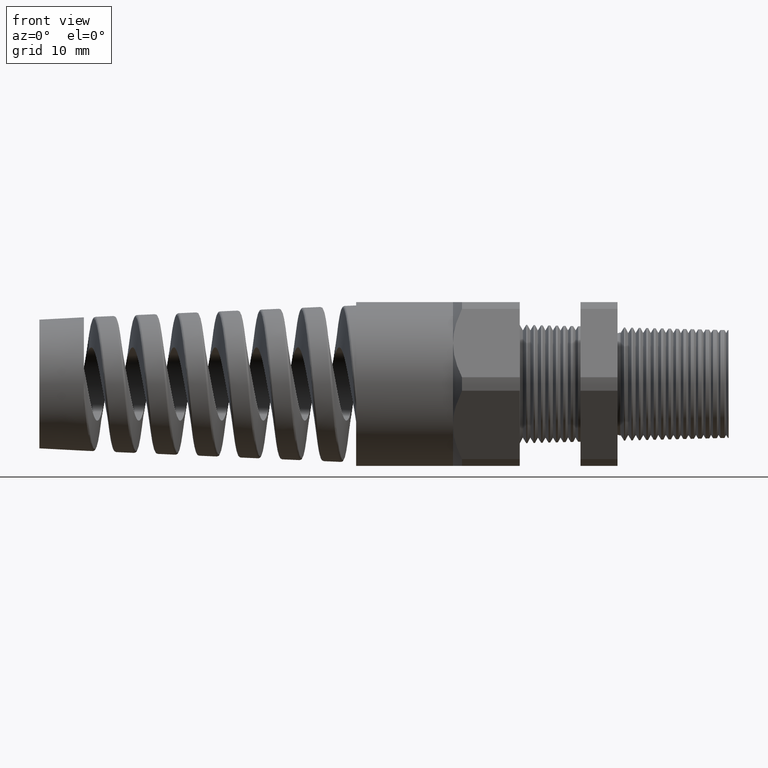
[diagram: clean part render]
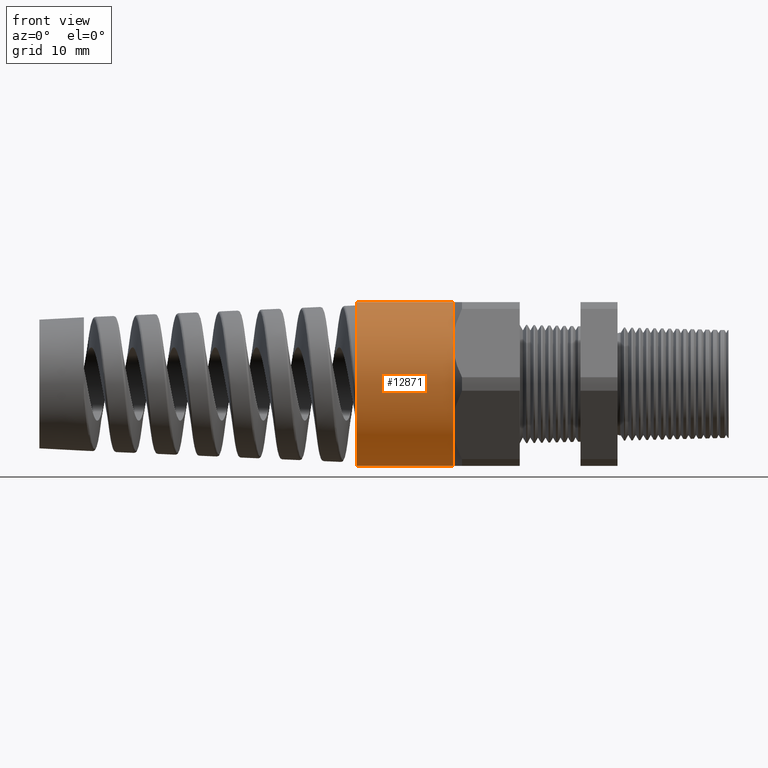
[diagram: same view with one face highlighted and labeled with its STEP entity id]
A machine part, front view. The second image highlights one B-rep face of the part: STEP entity #12871.
In plain terms, the highlighted cylindrical surface (partial cylindrical patch) has radius 11.049 mm, axis along (1, -0, -0).
Its self-contained STEP definition (entity closure, byte-faithful):
#6611 = DIRECTION ( 'NONE',  ( 1.000000000000000000, -0.0000000000000000000, -0.0000000000000000000 ) ) ;
#6616 = CARTESIAN_POINT ( 'NONE',  ( -1.697947509874504300, 0.0000000000000000000, 0.0000000000000000000 ) ) ;
#6617 = DIRECTION ( 'NONE',  ( 0.0000000000000000000, 0.0000000000000000000, -1.000000000000000000 ) ) ;
#6662 = CARTESIAN_POINT ( 'NONE',  ( -1.183700787401574600, 0.0000000000000000000, 0.4350000000000000000 ) ) ;
#6663 = DIRECTION ( 'NONE',  ( 1.000000000000000000, -0.0000000000000000000, -0.0000000000000000000 ) ) ;
#6664 = VECTOR ( 'NONE', #6663, 39.37007874015748100 ) ;
#6665 = CARTESIAN_POINT ( 'NONE',  ( 1.326736918405036800, 5.327213576290986400E-017, 0.4350000000000000000 ) ) ;
#6666 = LINE ( 'NONE', #6665, #6664 ) ;
#6667 = CARTESIAN_POINT ( 'NONE',  ( -1.697947509874504300, 0.0000000000000000000, -0.4350000000000000000 ) ) ;
#6668 = CARTESIAN_POINT ( 'NONE',  ( -1.697947509874504300, 5.327213576290986400E-017, 0.4350000000000000000 ) ) ;
#6735 = CARTESIAN_POINT ( 'NONE',  ( -1.183700787401574600, 0.0000000000000000000, -0.4350000000000000000 ) ) ;
#6792 = DIRECTION ( 'NONE',  ( 1.000000000000000000, -0.0000000000000000000, -0.0000000000000000000 ) ) ;
#6793 = VECTOR ( 'NONE', #6792, 39.37007874015748100 ) ;
#6794 = CARTESIAN_POINT ( 'NONE',  ( 1.326736918405036800, 0.0000000000000000000, -0.4350000000000000000 ) ) ;
#6795 = LINE ( 'NONE', #6794, #6793 ) ;
#6862 = CIRCLE ( 'NONE', #7110, 0.4350000000000000000 ) ;
#7110 = AXIS2_PLACEMENT_3D ( 'NONE', #6616, #7354, #7360 ) ;
#7354 = DIRECTION ( 'NONE',  ( -1.000000000000000000, 0.0000000000000000000, 0.0000000000000000000 ) ) ;
#7360 = DIRECTION ( 'NONE',  ( 0.0000000000000000000, 0.0000000000000000000, 1.000000000000000000 ) ) ;
#7687 = CARTESIAN_POINT ( 'NONE',  ( -1.183700787401574600, -0.3767210506462310100, 0.2174999999999999400 ) ) ;
#7741 = CARTESIAN_POINT ( 'NONE',  ( -1.183700787401574600, -0.3767210506462307900, -0.2174999999999999700 ) ) ;
#7801 = DIRECTION ( 'NONE',  ( 0.0000000000000000000, 0.0000000000000000000, -1.000000000000000000 ) ) ;
#7802 = DIRECTION ( 'NONE',  ( 1.000000000000000000, -0.0000000000000000000, -0.0000000000000000000 ) ) ;
#7803 = CARTESIAN_POINT ( 'NONE',  ( -1.183700787401574600, 0.0000000000000000000, 0.0000000000000000000 ) ) ;
#7804 = AXIS2_PLACEMENT_3D ( 'NONE', #7803, #7802, #7801 ) ;
#7805 = CIRCLE ( 'NONE', #7804, 0.4350000000000000000 ) ;
#7833 = CARTESIAN_POINT ( 'NONE',  ( 1.326736918405036800, 0.0000000000000000000, 0.0000000000000000000 ) ) ;
#7834 = AXIS2_PLACEMENT_3D ( 'NONE', #7833, #6611, #6617 ) ;
#7837 = CYLINDRICAL_SURFACE ( 'NONE', #7834, 0.4350000000000000000 ) ;
#7838 = FACE_OUTER_BOUND ( 'NONE', #12872, .T. ) ;
#7886 = DIRECTION ( 'NONE',  ( 0.0000000000000000000, 0.0000000000000000000, -1.000000000000000000 ) ) ;
#7887 = DIRECTION ( 'NONE',  ( 1.000000000000000000, -0.0000000000000000000, -0.0000000000000000000 ) ) ;
#7888 = CARTESIAN_POINT ( 'NONE',  ( -1.183700787401574600, 0.0000000000000000000, 0.0000000000000000000 ) ) ;
#7889 = AXIS2_PLACEMENT_3D ( 'NONE', #7888, #7887, #7886 ) ;
#7890 = CIRCLE ( 'NONE', #7889, 0.4350000000000000000 ) ;
#7891 = DIRECTION ( 'NONE',  ( 0.0000000000000000000, 0.0000000000000000000, -1.000000000000000000 ) ) ;
#7892 = DIRECTION ( 'NONE',  ( 1.000000000000000000, -0.0000000000000000000, -0.0000000000000000000 ) ) ;
#7893 = CARTESIAN_POINT ( 'NONE',  ( -1.183700787401574600, 0.0000000000000000000, 0.0000000000000000000 ) ) ;
#7894 = AXIS2_PLACEMENT_3D ( 'NONE', #7893, #7892, #7891 ) ;
#7895 = CIRCLE ( 'NONE', #7894, 0.4350000000000000000 ) ;
#12258 = VERTEX_POINT ( 'NONE', #6668 ) ;
#12259 = VERTEX_POINT ( 'NONE', #6667 ) ;
#12261 = EDGE_CURVE ( 'NONE', #12258, #12262, #6666, .T. ) ;
#12262 = VERTEX_POINT ( 'NONE', #6662 ) ;
#12323 = VERTEX_POINT ( 'NONE', #6735 ) ;
#12325 = EDGE_CURVE ( 'NONE', #12259, #12323, #6795, .T. ) ;
#12799 = VERTEX_POINT ( 'NONE', #7687 ) ;
#12805 = VERTEX_POINT ( 'NONE', #7741 ) ;
#12855 = ORIENTED_EDGE ( 'NONE', *, *, #12856, .F. ) ;
#12856 = EDGE_CURVE ( 'NONE', #12262, #12799, #7805, .T. ) ;
#12871 = ADVANCED_FACE ( 'NONE', ( #7838 ), #7837, .T. ) ;
#12872 = EDGE_LOOP ( 'NONE', ( #12873, #12874, #12876, #12877, #12879, #12855 ) ) ;
#12873 = ORIENTED_EDGE ( 'NONE', *, *, #12261, .F. ) ;
#12874 = ORIENTED_EDGE ( 'NONE', *, *, #12875, .F. ) ;
#12875 = EDGE_CURVE ( 'NONE', #12259, #12258, #6862, .T. ) ;
#12876 = ORIENTED_EDGE ( 'NONE', *, *, #12325, .T. ) ;
#12877 = ORIENTED_EDGE ( 'NONE', *, *, #12878, .F. ) ;
#12878 = EDGE_CURVE ( 'NONE', #12805, #12323, #7895, .T. ) ;
#12879 = ORIENTED_EDGE ( 'NONE', *, *, #12880, .F. ) ;
#12880 = EDGE_CURVE ( 'NONE', #12799, #12805, #7890, .T. ) ;